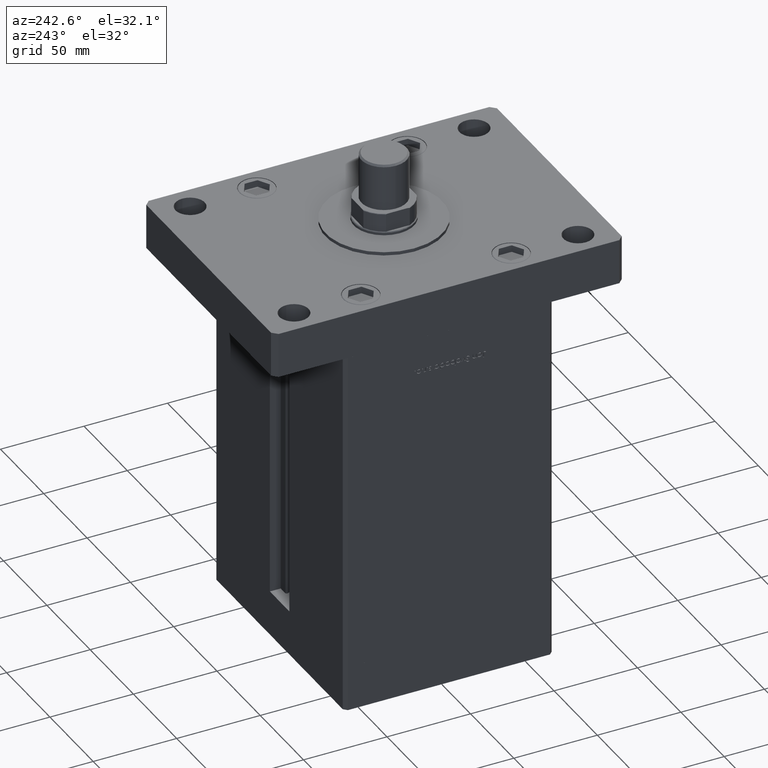
[diagram: clean part render]
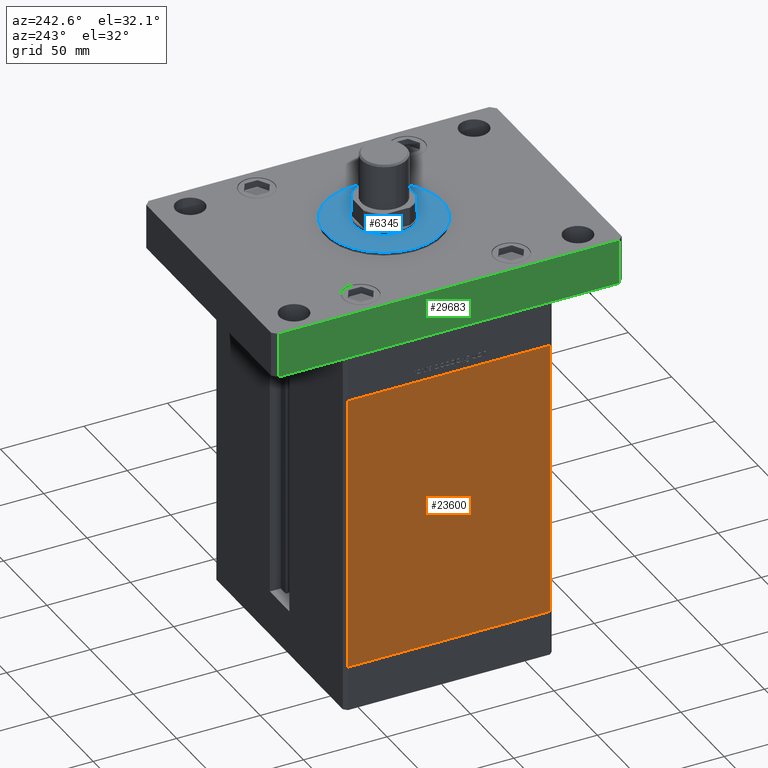
[diagram: same view with three faces highlighted in distinct colors, each labeled with its STEP entity id]
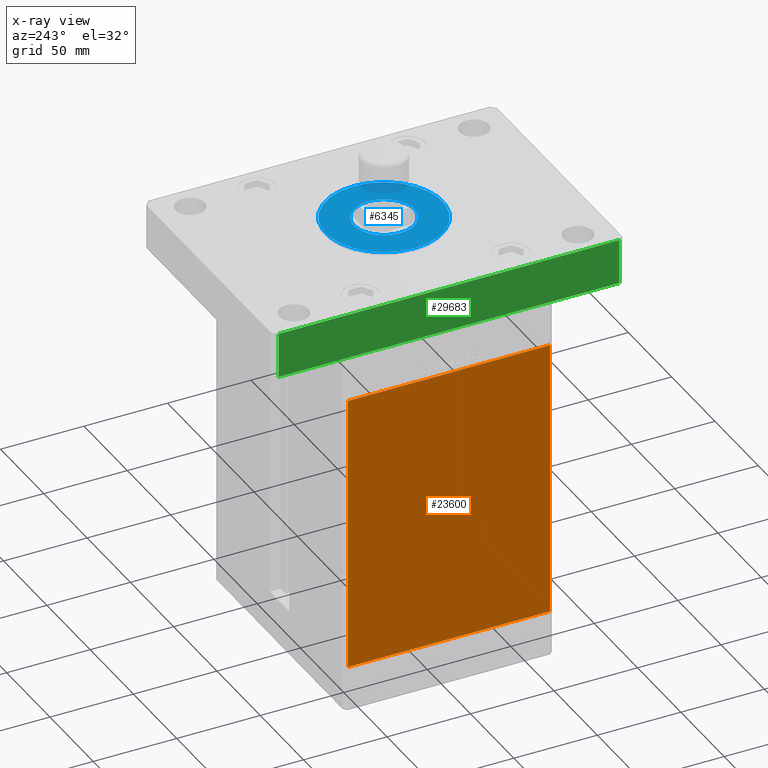
[diagram: x-ray of the same camera — body ghosted, the three highlighted faces saturated]
A machine part, auxiliary view with three faces highlighted in distinct colors.
The next image is the same camera in x-ray (body ghosted, the three faces saturated) — at least one of them is partly hidden behind the body in this view.
Their STEP definitions:

[orange] entity #23600 — the highlighted planar face has unit normal (1, 0, 0).
#67 = PLANE ( 'NONE',  #32522 ) ;
#1864 = VERTEX_POINT ( 'NONE', #15442 ) ;
#2502 = VERTEX_POINT ( 'NONE', #8644 ) ;
#3950 = DIRECTION ( 'NONE',  ( -2.293849224432142354E-16, 1.000000000000000000, 0.000000000000000000 ) ) ;
#4581 = ORIENTED_EDGE ( 'NONE', *, *, #12631, .F. ) ;
#8644 = CARTESIAN_POINT ( 'NONE',  ( -75.00000000000001421, 60.50000000000000000, 0.000000000000000000 ) ) ;
#9940 = LINE ( 'NONE', #39878, #29593 ) ;
#10591 = EDGE_CURVE ( 'NONE', #1864, #21119, #9940, .T. ) ;
#12505 = CARTESIAN_POINT ( 'NONE',  ( -75.00000000000001421, 60.50000000000000000, 167.0000000000000000 ) ) ;
#12631 = EDGE_CURVE ( 'NONE', #21119, #35741, #41110, .T. ) ;
#15442 = CARTESIAN_POINT ( 'NONE',  ( -75.00000000000001421, 60.50000000000000000, 167.0000000000000000 ) ) ;
#15516 = CARTESIAN_POINT ( 'NONE',  ( -75.00000000000001421, 60.50000000000000000, 167.0000000000000000 ) ) ;
#19368 = CARTESIAN_POINT ( 'NONE',  ( -74.99999999999998579, -60.50000000000000000, 167.0000000000000000 ) ) ;
#19988 = CARTESIAN_POINT ( 'NONE',  ( -75.00000000000001421, 60.50000000000000000, 0.000000000000000000 ) ) ;
#21119 = VERTEX_POINT ( 'NONE', #19368 ) ;
#22377 = FACE_OUTER_BOUND ( 'NONE', #45726, .T. ) ;
#23573 = LINE ( 'NONE', #19988, #35134 ) ;
#23600 = ADVANCED_FACE ( 'NONE', ( #22377 ), #67, .F. ) ;
#24703 = VECTOR ( 'NONE', #37396, 1000.000000000000000 ) ;
#26569 = EDGE_CURVE ( 'NONE', #2502, #35741, #23573, .T. ) ;
#27969 = LINE ( 'NONE', #15516, #24703 ) ;
#29593 = VECTOR ( 'NONE', #43741, 1000.000000000000000 ) ;
#31322 = EDGE_CURVE ( 'NONE', #1864, #2502, #27969, .T. ) ;
#32522 = AXIS2_PLACEMENT_3D ( 'NONE', #12505, #41613, #3950 ) ;
#35134 = VECTOR ( 'NONE', #49577, 1000.000000000000000 ) ;
#35741 = VERTEX_POINT ( 'NONE', #49662 ) ;
#36664 = CARTESIAN_POINT ( 'NONE',  ( -74.99999999999998579, -60.50000000000000000, 167.0000000000000000 ) ) ;
#37396 = DIRECTION ( 'NONE',  ( -0.000000000000000000, -0.000000000000000000, -1.000000000000000000 ) ) ;
#37536 = ORIENTED_EDGE ( 'NONE', *, *, #10591, .F. ) ;
#39878 = CARTESIAN_POINT ( 'NONE',  ( -75.00000000000001421, 60.50000000000000000, 167.0000000000000000 ) ) ;
#41039 = ORIENTED_EDGE ( 'NONE', *, *, #26569, .T. ) ;
#41110 = LINE ( 'NONE', #36664, #48107 ) ;
#41613 = DIRECTION ( 'NONE',  ( 1.000000000000000000, 2.293849224432142354E-16, -0.000000000000000000 ) ) ;
#43741 = DIRECTION ( 'NONE',  ( 2.293849224432141861E-16, -1.000000000000000000, 0.000000000000000000 ) ) ;
#45726 = EDGE_LOOP ( 'NONE', ( #41039, #4581, #37536, #49090 ) ) ;
#48107 = VECTOR ( 'NONE', #50185, 1000.000000000000000 ) ;
#49090 = ORIENTED_EDGE ( 'NONE', *, *, #31322, .T. ) ;
#49577 = DIRECTION ( 'NONE',  ( 2.293849224432141861E-16, -1.000000000000000000, 0.000000000000000000 ) ) ;
#49662 = CARTESIAN_POINT ( 'NONE',  ( -74.99999999999998579, -60.50000000000000000, 0.000000000000000000 ) ) ;
#50185 = DIRECTION ( 'NONE',  ( -0.000000000000000000, -0.000000000000000000, -1.000000000000000000 ) ) ;

[blue] entity #6345 — the highlighted planar face has unit normal (0, 0, 1).
#741 = CARTESIAN_POINT ( 'NONE',  ( -18.00000000000000000, 2.204364238465235428E-15, 28.99999999999999645 ) ) ;
#3077 = AXIS2_PLACEMENT_3D ( 'NONE', #16901, #9850, #39518 ) ;
#4069 = ORIENTED_EDGE ( 'NONE', *, *, #54542, .F. ) ;
#6345 = ADVANCED_FACE ( 'NONE', ( #29902, #8033 ), #38228, .T. ) ;
#8033 = FACE_OUTER_BOUND ( 'NONE', #19293, .T. ) ;
#8468 = VERTEX_POINT ( 'NONE', #17331 ) ;
#9089 = AXIS2_PLACEMENT_3D ( 'NONE', #44302, #31839, #19105 ) ;
#9714 = EDGE_CURVE ( 'NONE', #49095, #30648, #17096, .T. ) ;
#9850 = DIRECTION ( 'NONE',  ( 0.000000000000000000, 0.000000000000000000, 1.000000000000000000 ) ) ;
#10863 = CIRCLE ( 'NONE', #24027, 35.00000000000000711 ) ;
#12960 = VERTEX_POINT ( 'NONE', #36602 ) ;
#13483 = ORIENTED_EDGE ( 'NONE', *, *, #16000, .T. ) ;
#13585 = CARTESIAN_POINT ( 'NONE',  ( 0.000000000000000000, 0.000000000000000000, 28.99999999999999645 ) ) ;
#16000 = EDGE_CURVE ( 'NONE', #12960, #8468, #52637, .T. ) ;
#16901 = CARTESIAN_POINT ( 'NONE',  ( 0.000000000000000000, 0.000000000000000000, 28.99999999999999645 ) ) ;
#17096 = CIRCLE ( 'NONE', #3077, 18.00000000000000000 ) ;
#17331 = CARTESIAN_POINT ( 'NONE',  ( -35.00000000000000711, 0.000000000000000000, 28.99999999999999645 ) ) ;
#17436 = DIRECTION ( 'NONE',  ( 0.000000000000000000, 0.000000000000000000, 1.000000000000000000 ) ) ;
#19105 = DIRECTION ( 'NONE',  ( 1.000000000000000000, 0.000000000000000000, 0.000000000000000000 ) ) ;
#19293 = EDGE_LOOP ( 'NONE', ( #49020, #13483 ) ) ;
#20829 = DIRECTION ( 'NONE',  ( 0.000000000000000000, 0.000000000000000000, 1.000000000000000000 ) ) ;
#23131 = CARTESIAN_POINT ( 'NONE',  ( 0.000000000000000000, 0.000000000000000000, 28.99999999999999645 ) ) ;
#23399 = DIRECTION ( 'NONE',  ( 1.000000000000000000, 0.000000000000000000, 0.000000000000000000 ) ) ;
#24027 = AXIS2_PLACEMENT_3D ( 'NONE', #23131, #31992, #23399 ) ;
#24915 = DIRECTION ( 'NONE',  ( 1.000000000000000000, 0.000000000000000000, -0.000000000000000000 ) ) ;
#25001 = EDGE_LOOP ( 'NONE', ( #54591, #4069 ) ) ;
#25241 = DIRECTION ( 'NONE',  ( 1.000000000000000000, 0.000000000000000000, 0.000000000000000000 ) ) ;
#29667 = AXIS2_PLACEMENT_3D ( 'NONE', #13585, #20829, #25241 ) ;
#29902 = FACE_BOUND ( 'NONE', #25001, .T. ) ;
#30648 = VERTEX_POINT ( 'NONE', #741 ) ;
#31839 = DIRECTION ( 'NONE',  ( 0.000000000000000000, 0.000000000000000000, 1.000000000000000000 ) ) ;
#31992 = DIRECTION ( 'NONE',  ( 0.000000000000000000, 0.000000000000000000, 1.000000000000000000 ) ) ;
#33839 = CIRCLE ( 'NONE', #9089, 18.00000000000000000 ) ;
#36602 = CARTESIAN_POINT ( 'NONE',  ( 35.00000000000000711, 4.286263797015737285E-15, 28.99999999999999645 ) ) ;
#38228 = PLANE ( 'NONE',  #54223 ) ;
#39518 = DIRECTION ( 'NONE',  ( 1.000000000000000000, 0.000000000000000000, 0.000000000000000000 ) ) ;
#44302 = CARTESIAN_POINT ( 'NONE',  ( 0.000000000000000000, 0.000000000000000000, 28.99999999999999645 ) ) ;
#46238 = CARTESIAN_POINT ( 'NONE',  ( 0.000000000000000000, 0.000000000000000000, 28.99999999999999645 ) ) ;
#47854 = CARTESIAN_POINT ( 'NONE',  ( 18.00000000000000000, 0.000000000000000000, 28.99999999999999645 ) ) ;
#49020 = ORIENTED_EDGE ( 'NONE', *, *, #51951, .T. ) ;
#49095 = VERTEX_POINT ( 'NONE', #47854 ) ;
#51951 = EDGE_CURVE ( 'NONE', #8468, #12960, #10863, .T. ) ;
#52637 = CIRCLE ( 'NONE', #29667, 35.00000000000000711 ) ;
#54223 = AXIS2_PLACEMENT_3D ( 'NONE', #46238, #17436, #24915 ) ;
#54542 = EDGE_CURVE ( 'NONE', #30648, #49095, #33839, .T. ) ;
#54591 = ORIENTED_EDGE ( 'NONE', *, *, #9714, .F. ) ;

[green] entity #29683 — the highlighted planar face has unit normal (1, 0, 0).
#1081 = PLANE ( 'NONE',  #4336 ) ;
#4336 = AXIS2_PLACEMENT_3D ( 'NONE', #17430, #47047, #13810 ) ;
#7141 = ORIENTED_EDGE ( 'NONE', *, *, #49174, .F. ) ;
#7146 = DIRECTION ( 'NONE',  ( -0.000000000000000000, -0.000000000000000000, -1.000000000000000000 ) ) ;
#8003 = ORIENTED_EDGE ( 'NONE', *, *, #18938, .F. ) ;
#8203 = CARTESIAN_POINT ( 'NONE',  ( -75.00000000000001421, 102.0000000000000000, 0.000000000000000000 ) ) ;
#9614 = LINE ( 'NONE', #37919, #26188 ) ;
#11174 = LINE ( 'NONE', #23095, #31149 ) ;
#11971 = CARTESIAN_POINT ( 'NONE',  ( -74.99999999999998579, -102.0000000000000142, 27.00000000000000000 ) ) ;
#13810 = DIRECTION ( 'NONE',  ( -1.360567432138672081E-16, 1.000000000000000000, 0.000000000000000000 ) ) ;
#15176 = VECTOR ( 'NONE', #7146, 1000.000000000000000 ) ;
#17049 = VERTEX_POINT ( 'NONE', #38710 ) ;
#17430 = CARTESIAN_POINT ( 'NONE',  ( -75.00000000000001421, 102.0000000000000000, 27.00000000000000000 ) ) ;
#18053 = EDGE_CURVE ( 'NONE', #17049, #20935, #33944, .T. ) ;
#18938 = EDGE_CURVE ( 'NONE', #42095, #52236, #9614, .T. ) ;
#18956 = DIRECTION ( 'NONE',  ( -0.000000000000000000, -0.000000000000000000, -1.000000000000000000 ) ) ;
#19108 = VECTOR ( 'NONE', #28692, 1000.000000000000000 ) ;
#20802 = CARTESIAN_POINT ( 'NONE',  ( -74.99999999999998579, -102.0000000000000142, 0.000000000000000000 ) ) ;
#20841 = ORIENTED_EDGE ( 'NONE', *, *, #53334, .T. ) ;
#20935 = VERTEX_POINT ( 'NONE', #20802 ) ;
#23095 = CARTESIAN_POINT ( 'NONE',  ( -75.00000000000001421, 102.0000000000000000, 27.00000000000000000 ) ) ;
#24086 = CARTESIAN_POINT ( 'NONE',  ( -75.00000000000001421, 102.0000000000000000, 27.00000000000000000 ) ) ;
#26188 = VECTOR ( 'NONE', #46478, 1000.000000000000000 ) ;
#28406 = EDGE_LOOP ( 'NONE', ( #52519, #7141, #8003, #20841 ) ) ;
#28692 = DIRECTION ( 'NONE',  ( 1.360567432138672081E-16, -1.000000000000000000, 0.000000000000000000 ) ) ;
#29683 = ADVANCED_FACE ( 'NONE', ( #42385 ), #1081, .F. ) ;
#31149 = VECTOR ( 'NONE', #18956, 1000.000000000000000 ) ;
#33944 = LINE ( 'NONE', #8203, #19108 ) ;
#37919 = CARTESIAN_POINT ( 'NONE',  ( -75.00000000000001421, 102.0000000000000000, 27.00000000000000000 ) ) ;
#38710 = CARTESIAN_POINT ( 'NONE',  ( -75.00000000000001421, 102.0000000000000000, 0.000000000000000000 ) ) ;
#40950 = CARTESIAN_POINT ( 'NONE',  ( -74.99999999999998579, -102.0000000000000142, 27.00000000000000000 ) ) ;
#42095 = VERTEX_POINT ( 'NONE', #24086 ) ;
#42385 = FACE_OUTER_BOUND ( 'NONE', #28406, .T. ) ;
#45080 = LINE ( 'NONE', #40950, #15176 ) ;
#46478 = DIRECTION ( 'NONE',  ( 1.360567432138672081E-16, -1.000000000000000000, 0.000000000000000000 ) ) ;
#47047 = DIRECTION ( 'NONE',  ( 1.000000000000000000, 1.360567432138672081E-16, -0.000000000000000000 ) ) ;
#49174 = EDGE_CURVE ( 'NONE', #52236, #20935, #45080, .T. ) ;
#52236 = VERTEX_POINT ( 'NONE', #11971 ) ;
#52519 = ORIENTED_EDGE ( 'NONE', *, *, #18053, .T. ) ;
#53334 = EDGE_CURVE ( 'NONE', #42095, #17049, #11174, .T. ) ;